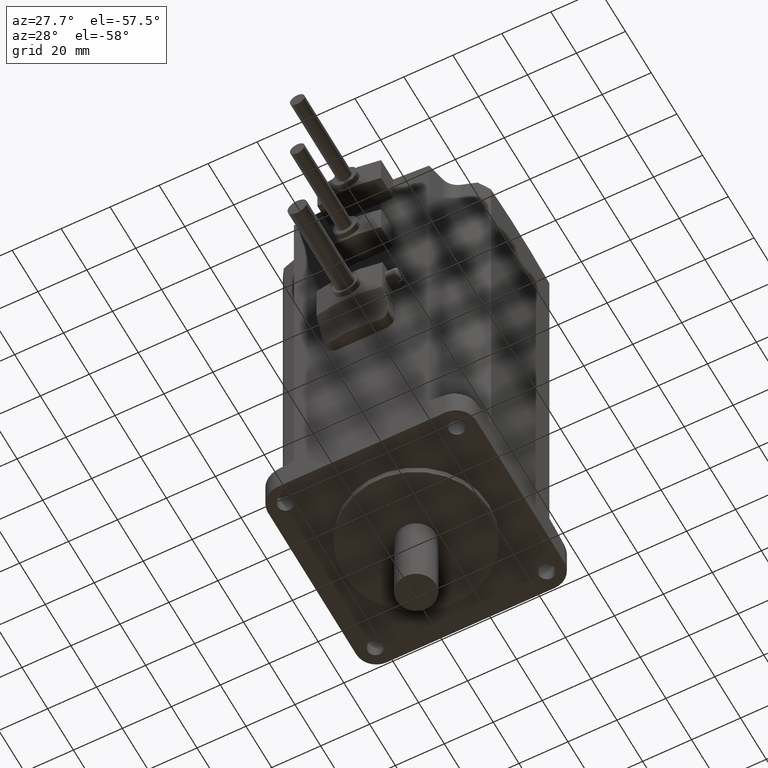
[diagram: clean part render]
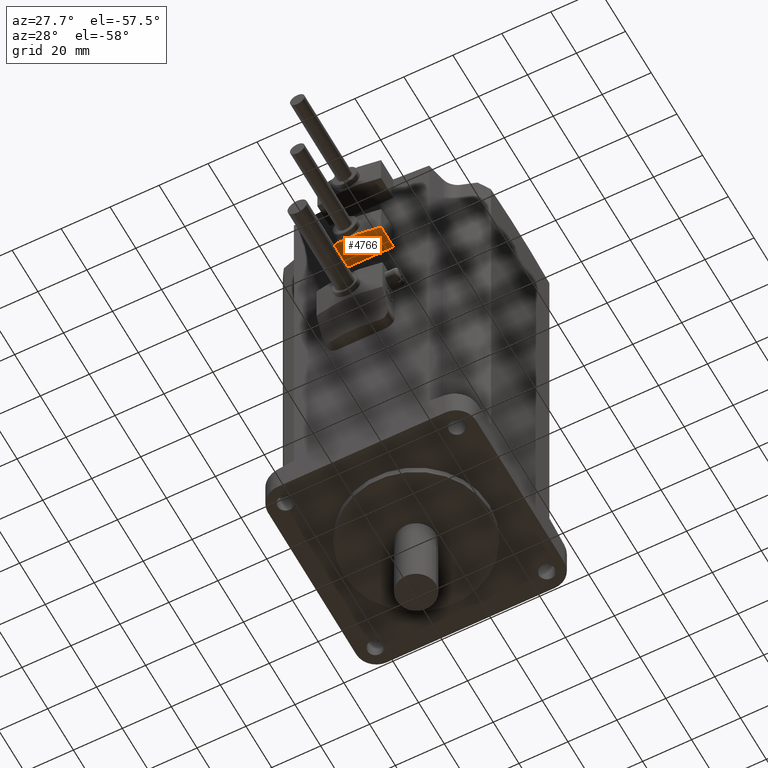
[diagram: same view with one face highlighted and labeled with its STEP entity id]
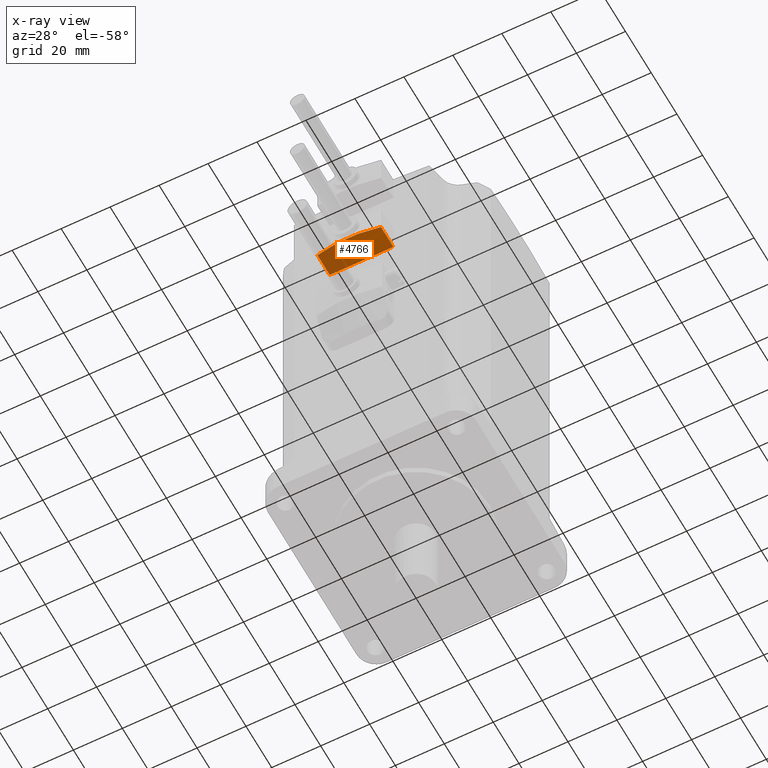
[diagram: x-ray of the same camera — body ghosted, the highlighted face saturated]
A machine part, auxiliary view. The second image highlights one B-rep face of the part: STEP entity #4766.
The next image is the same camera in x-ray: the body ghosted, the highlighted face saturated — about 28% of this face is hidden behind the body in this view.
In plain terms, the highlighted planar face has unit normal (-0, 0, -1).
Its self-contained STEP definition (entity closure, byte-faithful):
#181 = AXIS2_PLACEMENT_3D ( 'NONE', #3117, #3176, #1097 ) ;
#229 = DIRECTION ( 'NONE',  ( 0.0000000000000000000, 1.000000000000000000, 0.0000000000000000000 ) ) ;
#244 = DIRECTION ( 'NONE',  ( -1.000000000000000000, 0.0000000000000000000, 1.334402673828313586E-16 ) ) ;
#326 = CARTESIAN_POINT ( 'NONE',  ( -12.99999999999999645, -42.50000000000003553, 126.9999999999999716 ) ) ;
#356 = VECTOR ( 'NONE', #2404, 1000.000000000000000 ) ;
#468 = AXIS2_PLACEMENT_3D ( 'NONE', #1524, #1085, #244 ) ;
#674 = LINE ( 'NONE', #3131, #4614 ) ;
#910 = CARTESIAN_POINT ( 'NONE',  ( 12.99999999999999645, -53.50000000000003553, 126.9999999999999716 ) ) ;
#1085 = DIRECTION ( 'NONE',  ( -1.334402673828313586E-16, 0.0000000000000000000, -1.000000000000000000 ) ) ;
#1097 = DIRECTION ( 'NONE',  ( 1.000000000000000000, 0.0000000000000000000, 0.0000000000000000000 ) ) ;
#1164 = CARTESIAN_POINT ( 'NONE',  ( -12.99999999999999645, -52.07473858242991582, 126.9999999999999716 ) ) ;
#1272 = CARTESIAN_POINT ( 'NONE',  ( 12.99999999999999645, -42.50000000000003553, 126.9999999999999716 ) ) ;
#1326 = VERTEX_POINT ( 'NONE', #4967 ) ;
#1353 = LINE ( 'NONE', #910, #3082 ) ;
#1524 = CARTESIAN_POINT ( 'NONE',  ( -12.99999999999999645, -53.50000000000003553, 126.9999999999999716 ) ) ;
#1805 = EDGE_CURVE ( 'NONE', #2294, #1326, #2440, .T. ) ;
#2246 = PLANE ( 'NONE',  #468 ) ;
#2292 = EDGE_CURVE ( 'NONE', #2294, #4223, #3646, .T. ) ;
#2294 = VERTEX_POINT ( 'NONE', #1164 ) ;
#2335 = DIRECTION ( 'NONE',  ( -1.000000000000000000, -0.0000000000000000000, 1.334402673828313586E-16 ) ) ;
#2404 = DIRECTION ( 'NONE',  ( 0.0000000000000000000, 1.000000000000000000, 0.0000000000000000000 ) ) ;
#2427 = VERTEX_POINT ( 'NONE', #1272 ) ;
#2440 = CIRCLE ( 'NONE', #181, 60.00000000000000000 ) ;
#2514 = ORIENTED_EDGE ( 'NONE', *, *, #4408, .F. ) ;
#2959 = ORIENTED_EDGE ( 'NONE', *, *, #1805, .F. ) ;
#3082 = VECTOR ( 'NONE', #229, 1000.000000000000000 ) ;
#3117 = CARTESIAN_POINT ( 'NONE',  ( 8.006416042969877077E-16, 6.499999999999964473, 126.9999999999999716 ) ) ;
#3131 = CARTESIAN_POINT ( 'NONE',  ( -12.99999999999999645, -42.50000000000003553, 126.9999999999999716 ) ) ;
#3165 = ORIENTED_EDGE ( 'NONE', *, *, #2292, .T. ) ;
#3176 = DIRECTION ( 'NONE',  ( 0.0000000000000000000, 0.0000000000000000000, 1.000000000000000000 ) ) ;
#3646 = LINE ( 'NONE', #4398, #356 ) ;
#3663 = EDGE_LOOP ( 'NONE', ( #2514, #2959, #3165, #3777 ) ) ;
#3777 = ORIENTED_EDGE ( 'NONE', *, *, #5039, .F. ) ;
#4223 = VERTEX_POINT ( 'NONE', #326 ) ;
#4345 = FACE_OUTER_BOUND ( 'NONE', #3663, .T. ) ;
#4398 = CARTESIAN_POINT ( 'NONE',  ( -12.99999999999999645, -53.50000000000003553, 126.9999999999999716 ) ) ;
#4408 = EDGE_CURVE ( 'NONE', #1326, #2427, #1353, .T. ) ;
#4614 = VECTOR ( 'NONE', #2335, 1000.000000000000000 ) ;
#4766 = ADVANCED_FACE ( 'NONE', ( #4345 ), #2246, .T. ) ;
#4967 = CARTESIAN_POINT ( 'NONE',  ( 13.00000000000000000, -52.07473858242992293, 126.9999999999999716 ) ) ;
#5039 = EDGE_CURVE ( 'NONE', #2427, #4223, #674, .T. ) ;